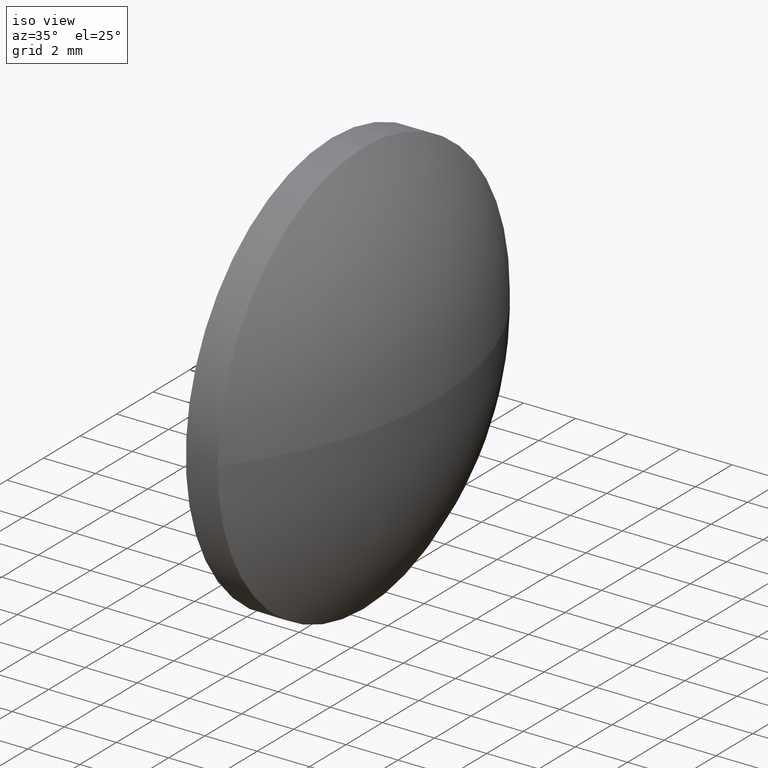
[diagram: clean part render]
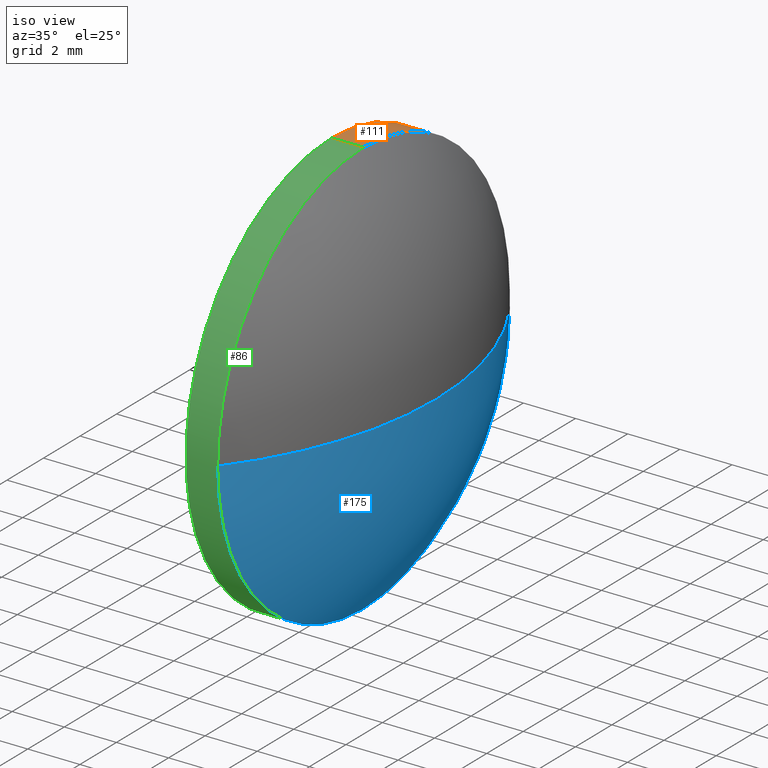
[diagram: same view with three faces highlighted in distinct colors, each labeled with its STEP entity id]
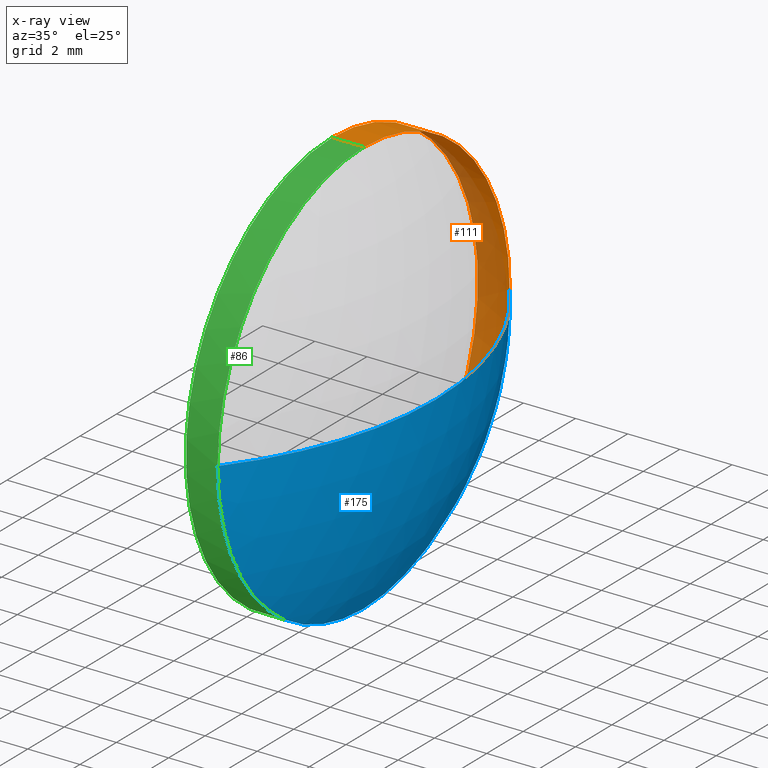
[diagram: x-ray of the same camera — body ghosted, the three highlighted faces saturated]
A machine part, iso view with three faces highlighted in distinct colors.
The next image is the same camera in x-ray (body ghosted, the three faces saturated) — at least one of them is partly hidden behind the body in this view.
Their STEP definitions:

[orange] entity #111 — the highlighted cylindrical surface (partial cylindrical patch) has radius 8 mm, axis along (-1, -0, -0).
#2 = ORIENTED_EDGE ( 'NONE', *, *, #96, .T. ) ;
#7 = CARTESIAN_POINT ( 'NONE',  ( 547.0900761901107200, 147.9861653284031000, 0.0000000000000000000 ) ) ;
#12 = VECTOR ( 'NONE', #72, 1000.000000000000000 ) ;
#18 = VECTOR ( 'NONE', #58, 1000.000000000000000 ) ;
#21 = ORIENTED_EDGE ( 'NONE', *, *, #61, .T. ) ;
#24 = CIRCLE ( 'NONE', #62, 8.000000000000007100 ) ;
#27 = AXIS2_PLACEMENT_3D ( 'NONE', #163, #47, #104 ) ;
#45 = DIRECTION ( 'NONE',  ( -1.000000000000000000, -0.0000000000000000000, -0.0000000000000000000 ) ) ;
#47 = DIRECTION ( 'NONE',  ( -1.000000000000000000, -0.0000000000000000000, -0.0000000000000000000 ) ) ;
#48 = CARTESIAN_POINT ( 'NONE',  ( 547.0900761901107200, 139.9861653284031000, 0.0000000000000000000 ) ) ;
#57 = CARTESIAN_POINT ( 'NONE',  ( 527.2437330882992200, 139.9861653284031000, 8.000000000000007100 ) ) ;
#58 = DIRECTION ( 'NONE',  ( -1.000000000000000000, -0.0000000000000000000, -0.0000000000000000000 ) ) ;
#61 = EDGE_CURVE ( 'NONE', #70, #124, #143, .T. ) ;
#62 = AXIS2_PLACEMENT_3D ( 'NONE', #48, #166, #117 ) ;
#68 = EDGE_CURVE ( 'NONE', #151, #93, #156, .T. ) ;
#70 = VERTEX_POINT ( 'NONE', #109 ) ;
#72 = DIRECTION ( 'NONE',  ( -1.000000000000000000, -0.0000000000000000000, -0.0000000000000000000 ) ) ;
#75 = CARTESIAN_POINT ( 'NONE',  ( 547.0900761901107200, 139.9861653284031000, 8.000000000000007100 ) ) ;
#83 = CYLINDRICAL_SURFACE ( 'NONE', #185, 8.000000000000007100 ) ;
#84 = ORIENTED_EDGE ( 'NONE', *, *, #152, .T. ) ;
#87 = DIRECTION ( 'NONE',  ( 0.0000000000000000000, 0.0000000000000000000, 1.000000000000000000 ) ) ;
#93 = VERTEX_POINT ( 'NONE', #128 ) ;
#96 = EDGE_CURVE ( 'NONE', #137, #70, #140, .T. ) ;
#98 = CARTESIAN_POINT ( 'NONE',  ( 547.0900761901107200, 139.9861653284031000, 0.0000000000000000000 ) ) ;
#104 = DIRECTION ( 'NONE',  ( 0.0000000000000000000, 0.0000000000000000000, 1.000000000000000000 ) ) ;
#109 = CARTESIAN_POINT ( 'NONE',  ( 547.0900761901107200, 139.9861653284031000, -8.000000000000007100 ) ) ;
#111 = ADVANCED_FACE ( 'NONE', ( #118 ), #83, .T. ) ;
#117 = DIRECTION ( 'NONE',  ( 0.0000000000000000000, 0.0000000000000000000, 1.000000000000000000 ) ) ;
#118 = FACE_OUTER_BOUND ( 'NONE', #155, .T. ) ;
#120 = AXIS2_PLACEMENT_3D ( 'NONE', #98, #45, #159 ) ;
#124 = VERTEX_POINT ( 'NONE', #157 ) ;
#128 = CARTESIAN_POINT ( 'NONE',  ( 545.8700761901106900, 139.9861653284031000, 8.000000000000007100 ) ) ;
#137 = VERTEX_POINT ( 'NONE', #7 ) ;
#140 = CIRCLE ( 'NONE', #120, 8.000000000000007100 ) ;
#143 = LINE ( 'NONE', #172, #12 ) ;
#144 = CARTESIAN_POINT ( 'NONE',  ( 527.2437330882992200, 139.9861653284031000, 0.0000000000000000000 ) ) ;
#148 = ORIENTED_EDGE ( 'NONE', *, *, #68, .F. ) ;
#151 = VERTEX_POINT ( 'NONE', #75 ) ;
#152 = EDGE_CURVE ( 'NONE', #151, #137, #24, .T. ) ;
#154 = CIRCLE ( 'NONE', #27, 8.000000000000007100 ) ;
#155 = EDGE_LOOP ( 'NONE', ( #2, #21, #179, #148, #84 ) ) ;
#156 = LINE ( 'NONE', #57, #18 ) ;
#157 = CARTESIAN_POINT ( 'NONE',  ( 545.8700761901106900, 139.9861653284031000, -8.000000000000007100 ) ) ;
#159 = DIRECTION ( 'NONE',  ( 0.0000000000000000000, 0.0000000000000000000, 1.000000000000000000 ) ) ;
#163 = CARTESIAN_POINT ( 'NONE',  ( 545.8700761901106900, 139.9861653284031000, 0.0000000000000000000 ) ) ;
#166 = DIRECTION ( 'NONE',  ( -1.000000000000000000, -0.0000000000000000000, -0.0000000000000000000 ) ) ;
#172 = CARTESIAN_POINT ( 'NONE',  ( 527.2437330882992200, 139.9861653284031000, -8.000000000000007100 ) ) ;
#176 = DIRECTION ( 'NONE',  ( -1.000000000000000000, -0.0000000000000000000, -0.0000000000000000000 ) ) ;
#179 = ORIENTED_EDGE ( 'NONE', *, *, #184, .F. ) ;
#184 = EDGE_CURVE ( 'NONE', #93, #124, #154, .T. ) ;
#185 = AXIS2_PLACEMENT_3D ( 'NONE', #144, #176, #87 ) ;

[blue] entity #175 — the highlighted spherical surface has radius 12.9008 mm.
#3 = DIRECTION ( 'NONE',  ( -1.000000000000000000, -0.0000000000000000000, -0.0000000000000000000 ) ) ;
#7 = CARTESIAN_POINT ( 'NONE',  ( 547.0900761901107200, 147.9861653284031000, 0.0000000000000000000 ) ) ;
#11 = ORIENTED_EDGE ( 'NONE', *, *, #96, .F. ) ;
#15 = ORIENTED_EDGE ( 'NONE', *, *, #43, .T. ) ;
#16 = CARTESIAN_POINT ( 'NONE',  ( 549.8700761901106900, 139.9861653284031300, 0.0000000000000000000 ) ) ;
#26 = VERTEX_POINT ( 'NONE', #113 ) ;
#32 = DIRECTION ( 'NONE',  ( 1.000000000000000000, 0.0000000000000000000, 0.0000000000000000000 ) ) ;
#38 = EDGE_CURVE ( 'NONE', #90, #137, #41, .T. ) ;
#41 = CIRCLE ( 'NONE', #82, 12.90079136690647100 ) ;
#43 = EDGE_CURVE ( 'NONE', #90, #26, #186, .T. ) ;
#45 = DIRECTION ( 'NONE',  ( -1.000000000000000000, -0.0000000000000000000, -0.0000000000000000000 ) ) ;
#59 = DIRECTION ( 'NONE',  ( -0.0000000000000000000, 0.0000000000000000000, -1.000000000000000000 ) ) ;
#65 = ORIENTED_EDGE ( 'NONE', *, *, #38, .F. ) ;
#70 = VERTEX_POINT ( 'NONE', #109 ) ;
#78 = SPHERICAL_SURFACE ( 'NONE', #141, 12.90079136690646600 ) ;
#79 = EDGE_LOOP ( 'NONE', ( #65, #15, #150, #11 ) ) ;
#81 = FACE_OUTER_BOUND ( 'NONE', #79, .T. ) ;
#82 = AXIS2_PLACEMENT_3D ( 'NONE', #112, #88, #32 ) ;
#85 = DIRECTION ( 'NONE',  ( 0.0000000000000000000, 1.224646799147353200E-016, -1.000000000000000000 ) ) ;
#88 = DIRECTION ( 'NONE',  ( -0.0000000000000000000, 0.0000000000000000000, 1.000000000000000000 ) ) ;
#90 = VERTEX_POINT ( 'NONE', #16 ) ;
#92 = EDGE_CURVE ( 'NONE', #70, #26, #167, .T. ) ;
#95 = CARTESIAN_POINT ( 'NONE',  ( 536.9692848232042500, 139.9861653284031300, 0.0000000000000000000 ) ) ;
#96 = EDGE_CURVE ( 'NONE', #137, #70, #140, .T. ) ;
#98 = CARTESIAN_POINT ( 'NONE',  ( 547.0900761901107200, 139.9861653284031000, 0.0000000000000000000 ) ) ;
#106 = DIRECTION ( 'NONE',  ( 0.0000000000000000000, 1.000000000000000000, 0.0000000000000000000 ) ) ;
#109 = CARTESIAN_POINT ( 'NONE',  ( 547.0900761901107200, 139.9861653284031000, -8.000000000000007100 ) ) ;
#112 = CARTESIAN_POINT ( 'NONE',  ( 536.9692848232042500, 139.9861653284031300, 0.0000000000000000000 ) ) ;
#113 = CARTESIAN_POINT ( 'NONE',  ( 547.0900761901107200, 131.9861653284031300, -9.797174393178839500E-016 ) ) ;
#120 = AXIS2_PLACEMENT_3D ( 'NONE', #98, #45, #159 ) ;
#137 = VERTEX_POINT ( 'NONE', #7 ) ;
#140 = CIRCLE ( 'NONE', #120, 8.000000000000007100 ) ;
#141 = AXIS2_PLACEMENT_3D ( 'NONE', #178, #59, #106 ) ;
#150 = ORIENTED_EDGE ( 'NONE', *, *, #92, .F. ) ;
#153 = AXIS2_PLACEMENT_3D ( 'NONE', #177, #3, #158 ) ;
#158 = DIRECTION ( 'NONE',  ( 0.0000000000000000000, 0.0000000000000000000, 1.000000000000000000 ) ) ;
#159 = DIRECTION ( 'NONE',  ( 0.0000000000000000000, 0.0000000000000000000, 1.000000000000000000 ) ) ;
#167 = CIRCLE ( 'NONE', #153, 8.000000000000007100 ) ;
#171 = AXIS2_PLACEMENT_3D ( 'NONE', #95, #85, #174 ) ;
#174 = DIRECTION ( 'NONE',  ( 0.0000000000000000000, 1.000000000000000000, 1.224646799147352700E-016 ) ) ;
#175 = ADVANCED_FACE ( 'NONE', ( #81 ), #78, .T. ) ;
#177 = CARTESIAN_POINT ( 'NONE',  ( 547.0900761901107200, 139.9861653284031000, 0.0000000000000000000 ) ) ;
#178 = CARTESIAN_POINT ( 'NONE',  ( 536.9692848232042500, 139.9861653284031300, 0.0000000000000000000 ) ) ;
#186 = CIRCLE ( 'NONE', #171, 12.90079136690647100 ) ;

[green] entity #86 — the highlighted cylindrical surface (partial cylindrical patch) has radius 8 mm, axis along (-1, -0, -0).
#1 = CARTESIAN_POINT ( 'NONE',  ( 527.2437330882992200, 139.9861653284031000, 0.0000000000000000000 ) ) ;
#3 = DIRECTION ( 'NONE',  ( -1.000000000000000000, -0.0000000000000000000, -0.0000000000000000000 ) ) ;
#9 = DIRECTION ( 'NONE',  ( 0.0000000000000000000, 0.0000000000000000000, 1.000000000000000000 ) ) ;
#10 = ORIENTED_EDGE ( 'NONE', *, *, #61, .F. ) ;
#12 = VECTOR ( 'NONE', #72, 1000.000000000000000 ) ;
#18 = VECTOR ( 'NONE', #58, 1000.000000000000000 ) ;
#19 = AXIS2_PLACEMENT_3D ( 'NONE', #46, #89, #9 ) ;
#20 = FACE_OUTER_BOUND ( 'NONE', #165, .T. ) ;
#22 = DIRECTION ( 'NONE',  ( 0.0000000000000000000, 0.0000000000000000000, 1.000000000000000000 ) ) ;
#26 = VERTEX_POINT ( 'NONE', #113 ) ;
#34 = DIRECTION ( 'NONE',  ( -1.000000000000000000, -0.0000000000000000000, -0.0000000000000000000 ) ) ;
#36 = ORIENTED_EDGE ( 'NONE', *, *, #122, .F. ) ;
#40 = AXIS2_PLACEMENT_3D ( 'NONE', #105, #34, #22 ) ;
#46 = CARTESIAN_POINT ( 'NONE',  ( 547.0900761901107200, 139.9861653284031000, 0.0000000000000000000 ) ) ;
#52 = ORIENTED_EDGE ( 'NONE', *, *, #68, .T. ) ;
#54 = CIRCLE ( 'NONE', #19, 8.000000000000007100 ) ;
#57 = CARTESIAN_POINT ( 'NONE',  ( 527.2437330882992200, 139.9861653284031000, 8.000000000000007100 ) ) ;
#58 = DIRECTION ( 'NONE',  ( -1.000000000000000000, -0.0000000000000000000, -0.0000000000000000000 ) ) ;
#61 = EDGE_CURVE ( 'NONE', #70, #124, #143, .T. ) ;
#68 = EDGE_CURVE ( 'NONE', #151, #93, #156, .T. ) ;
#70 = VERTEX_POINT ( 'NONE', #109 ) ;
#72 = DIRECTION ( 'NONE',  ( -1.000000000000000000, -0.0000000000000000000, -0.0000000000000000000 ) ) ;
#75 = CARTESIAN_POINT ( 'NONE',  ( 547.0900761901107200, 139.9861653284031000, 8.000000000000007100 ) ) ;
#86 = ADVANCED_FACE ( 'NONE', ( #20 ), #94, .T. ) ;
#89 = DIRECTION ( 'NONE',  ( -1.000000000000000000, -0.0000000000000000000, -0.0000000000000000000 ) ) ;
#92 = EDGE_CURVE ( 'NONE', #70, #26, #167, .T. ) ;
#93 = VERTEX_POINT ( 'NONE', #128 ) ;
#94 = CYLINDRICAL_SURFACE ( 'NONE', #107, 8.000000000000007100 ) ;
#97 = DIRECTION ( 'NONE',  ( -1.000000000000000000, -0.0000000000000000000, -0.0000000000000000000 ) ) ;
#105 = CARTESIAN_POINT ( 'NONE',  ( 545.8700761901106900, 139.9861653284031000, 0.0000000000000000000 ) ) ;
#107 = AXIS2_PLACEMENT_3D ( 'NONE', #1, #97, #129 ) ;
#109 = CARTESIAN_POINT ( 'NONE',  ( 547.0900761901107200, 139.9861653284031000, -8.000000000000007100 ) ) ;
#110 = ORIENTED_EDGE ( 'NONE', *, *, #139, .T. ) ;
#113 = CARTESIAN_POINT ( 'NONE',  ( 547.0900761901107200, 131.9861653284031300, -9.797174393178839500E-016 ) ) ;
#115 = ORIENTED_EDGE ( 'NONE', *, *, #92, .T. ) ;
#122 = EDGE_CURVE ( 'NONE', #124, #93, #125, .T. ) ;
#124 = VERTEX_POINT ( 'NONE', #157 ) ;
#125 = CIRCLE ( 'NONE', #40, 8.000000000000007100 ) ;
#128 = CARTESIAN_POINT ( 'NONE',  ( 545.8700761901106900, 139.9861653284031000, 8.000000000000007100 ) ) ;
#129 = DIRECTION ( 'NONE',  ( 0.0000000000000000000, 0.0000000000000000000, 1.000000000000000000 ) ) ;
#139 = EDGE_CURVE ( 'NONE', #26, #151, #54, .T. ) ;
#143 = LINE ( 'NONE', #172, #12 ) ;
#151 = VERTEX_POINT ( 'NONE', #75 ) ;
#153 = AXIS2_PLACEMENT_3D ( 'NONE', #177, #3, #158 ) ;
#156 = LINE ( 'NONE', #57, #18 ) ;
#157 = CARTESIAN_POINT ( 'NONE',  ( 545.8700761901106900, 139.9861653284031000, -8.000000000000007100 ) ) ;
#158 = DIRECTION ( 'NONE',  ( 0.0000000000000000000, 0.0000000000000000000, 1.000000000000000000 ) ) ;
#165 = EDGE_LOOP ( 'NONE', ( #10, #115, #110, #52, #36 ) ) ;
#167 = CIRCLE ( 'NONE', #153, 8.000000000000007100 ) ;
#172 = CARTESIAN_POINT ( 'NONE',  ( 527.2437330882992200, 139.9861653284031000, -8.000000000000007100 ) ) ;
#177 = CARTESIAN_POINT ( 'NONE',  ( 547.0900761901107200, 139.9861653284031000, 0.0000000000000000000 ) ) ;